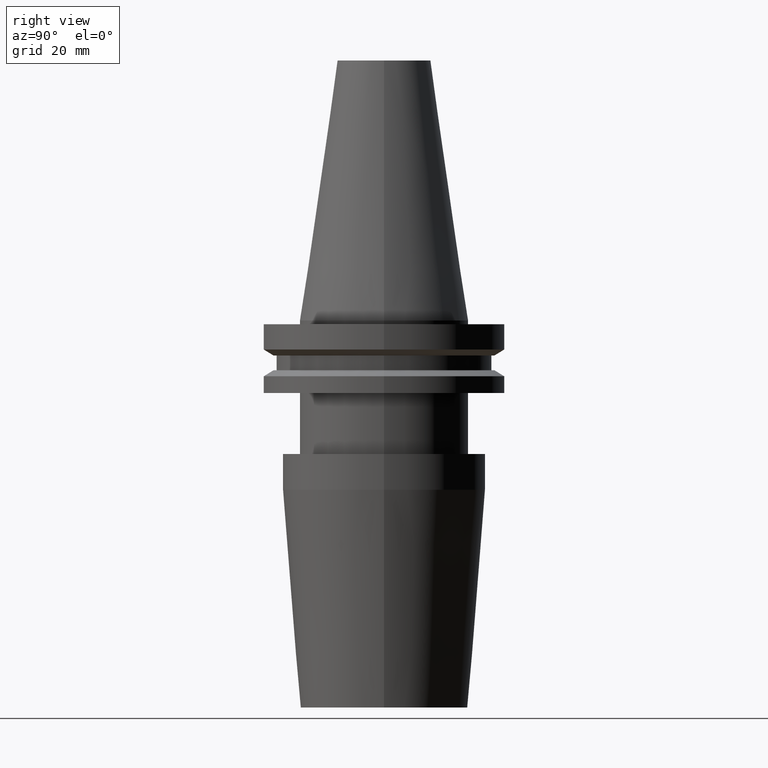
[diagram: clean part render]
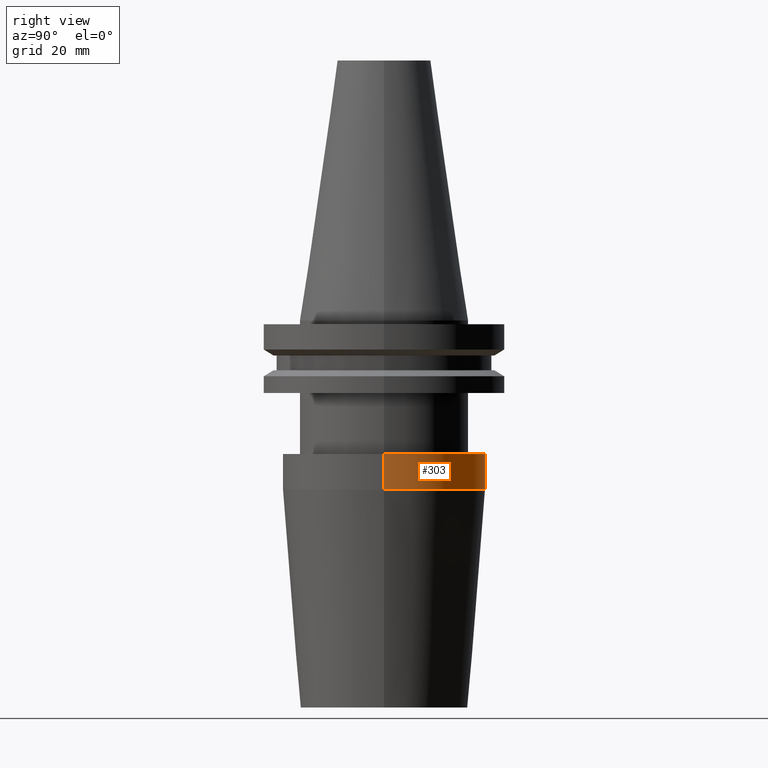
[diagram: same view with one face highlighted and labeled with its STEP entity id]
A machine part, right view. The second image highlights one B-rep face of the part: STEP entity #303.
In plain terms, the highlighted cylindrical surface (partial cylindrical patch) has radius 26.5 mm, axis along (-0, -0, 1).
Its self-contained STEP definition (entity closure, byte-faithful):
#1 = AXIS2_PLACEMENT_3D ( 'NONE', #211, #470, #730 ) ;
#19 = VERTEX_POINT ( 'NONE', #342 ) ;
#79 = ORIENTED_EDGE ( 'NONE', *, *, #431, .T. ) ;
#85 = ORIENTED_EDGE ( 'NONE', *, *, #739, .T. ) ;
#92 = CARTESIAN_POINT ( 'NONE',  ( -26.49999999999999645, 3.245314017740485370E-15, -44.42207868720777952 ) ) ;
#132 = EDGE_LOOP ( 'NONE', ( #85, #79, #291, #598 ) ) ;
#186 = VECTOR ( 'NONE', #411, 1000.000000000000000 ) ;
#203 = LINE ( 'NONE', #612, #186 ) ;
#211 = CARTESIAN_POINT ( 'NONE',  ( 0.000000000000000000, 0.000000000000000000, -44.42207868720777952 ) ) ;
#216 = VECTOR ( 'NONE', #715, 1000.000000000000000 ) ;
#230 = AXIS2_PLACEMENT_3D ( 'NONE', #611, #626, #624 ) ;
#256 = CARTESIAN_POINT ( 'NONE',  ( 26.49999999999999645, 0.000000000000000000, 0.000000000000000000 ) ) ;
#268 = CARTESIAN_POINT ( 'NONE',  ( 26.49999999999999645, 0.000000000000000000, -44.42207868720777952 ) ) ;
#288 = CIRCLE ( 'NONE', #230, 26.50000000000000000 ) ;
#291 = ORIENTED_EDGE ( 'NONE', *, *, #823, .F. ) ;
#303 = ADVANCED_FACE ( 'NONE', ( #582 ), #327, .T. ) ;
#327 = CYLINDRICAL_SURFACE ( 'NONE', #586, 26.49999999999999645 ) ;
#331 = CARTESIAN_POINT ( 'NONE',  ( 0.000000000000000000, 0.000000000000000000, 0.000000000000000000 ) ) ;
#342 = CARTESIAN_POINT ( 'NONE',  ( 26.50000000000000000, 0.000000000000000000, -35.04999999999999716 ) ) ;
#359 = EDGE_CURVE ( 'NONE', #394, #19, #837, .T. ) ;
#394 = VERTEX_POINT ( 'NONE', #268 ) ;
#409 = CIRCLE ( 'NONE', #1, 26.49999999999999645 ) ;
#411 = DIRECTION ( 'NONE',  ( -0.000000000000000000, -0.000000000000000000, 1.000000000000000000 ) ) ;
#431 = EDGE_CURVE ( 'NONE', #475, #653, #203, .T. ) ;
#463 = CARTESIAN_POINT ( 'NONE',  ( -26.50000000000000355, 3.245314017740486159E-15, -35.04999999999999716 ) ) ;
#470 = DIRECTION ( 'NONE',  ( -0.000000000000000000, -0.000000000000000000, 1.000000000000000000 ) ) ;
#475 = VERTEX_POINT ( 'NONE', #92 ) ;
#512 = DIRECTION ( 'NONE',  ( 1.000000000000000000, 0.000000000000000000, 0.000000000000000000 ) ) ;
#578 = DIRECTION ( 'NONE',  ( -0.000000000000000000, -0.000000000000000000, 1.000000000000000000 ) ) ;
#582 = FACE_OUTER_BOUND ( 'NONE', #132, .T. ) ;
#586 = AXIS2_PLACEMENT_3D ( 'NONE', #331, #578, #512 ) ;
#598 = ORIENTED_EDGE ( 'NONE', *, *, #359, .F. ) ;
#611 = CARTESIAN_POINT ( 'NONE',  ( 0.000000000000000000, 0.000000000000000000, -35.04999999999999716 ) ) ;
#612 = CARTESIAN_POINT ( 'NONE',  ( -26.49999999999999645, 3.245314017740485370E-15, 0.000000000000000000 ) ) ;
#624 = DIRECTION ( 'NONE',  ( 1.000000000000000000, 0.000000000000000000, 0.000000000000000000 ) ) ;
#626 = DIRECTION ( 'NONE',  ( -0.000000000000000000, -0.000000000000000000, 1.000000000000000000 ) ) ;
#653 = VERTEX_POINT ( 'NONE', #463 ) ;
#715 = DIRECTION ( 'NONE',  ( -0.000000000000000000, -0.000000000000000000, 1.000000000000000000 ) ) ;
#730 = DIRECTION ( 'NONE',  ( 1.000000000000000000, 0.000000000000000000, 0.000000000000000000 ) ) ;
#739 = EDGE_CURVE ( 'NONE', #394, #475, #409, .T. ) ;
#823 = EDGE_CURVE ( 'NONE', #19, #653, #288, .T. ) ;
#837 = LINE ( 'NONE', #256, #216 ) ;